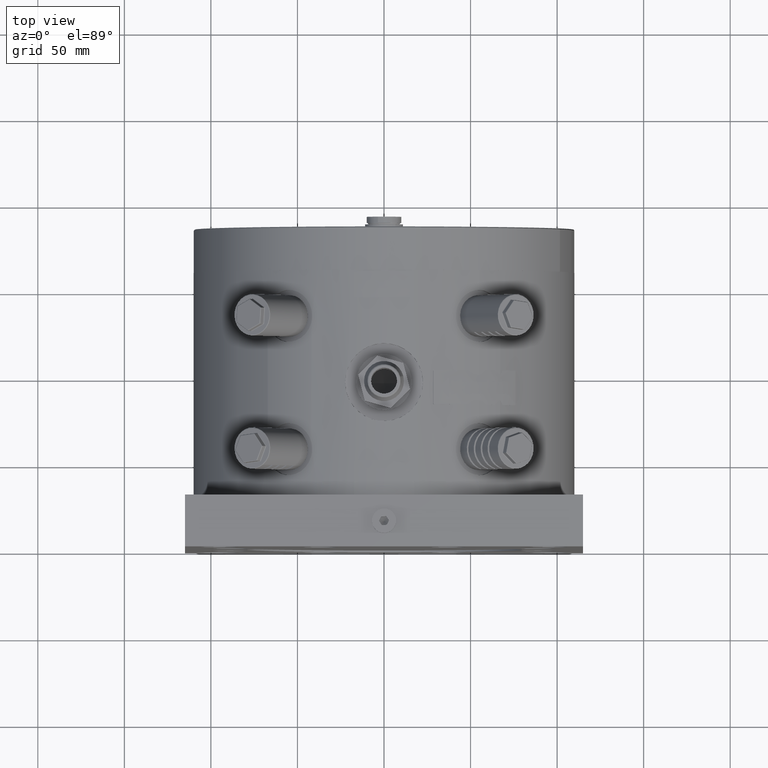
[diagram: clean part render]
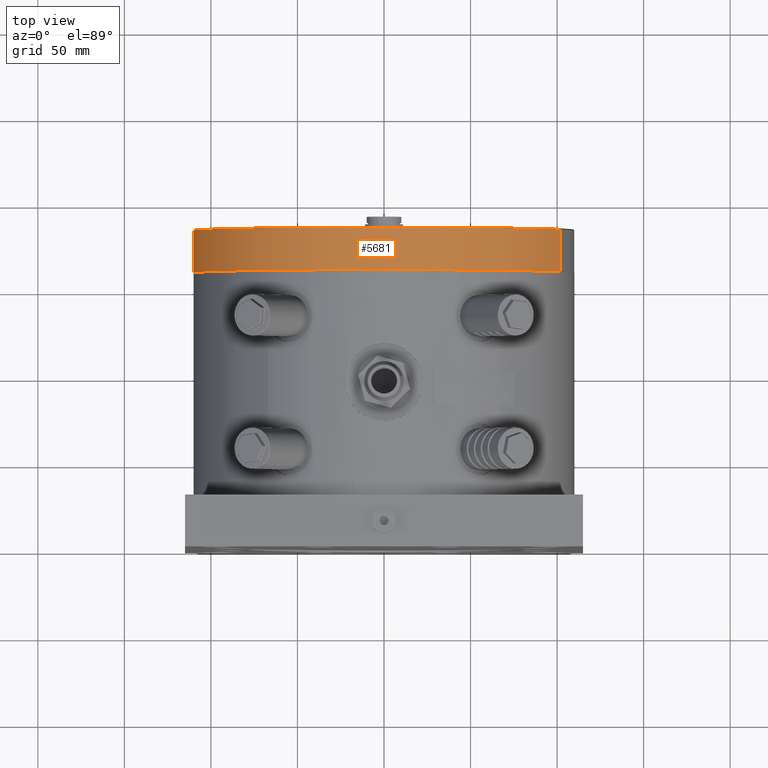
[diagram: same view with one face highlighted and labeled with its STEP entity id]
A machine part, top view. The second image highlights one B-rep face of the part: STEP entity #5681.
In plain terms, the highlighted cylindrical surface (partial cylindrical patch) has radius 110 mm, axis along (-0, -1, -0).
Its self-contained STEP definition (entity closure, byte-faithful):
#556 = AXIS2_PLACEMENT_3D ( 'NONE', #59534, #13200, #2173 ) ;
#818 = DIRECTION ( 'NONE',  ( 0.9238795325112811900, 0.0000000000000000000, 0.3826834323651031000 ) ) ;
#2173 = DIRECTION ( 'NONE',  ( -0.9238795325112811900, 0.0000000000000000000, -0.3826834323651031000 ) ) ;
#5215 = CARTESIAN_POINT ( 'NONE',  ( 101.6267485762409300, 160.0000000000000000, 42.09517756016102700 ) ) ;
#5681 = ADVANCED_FACE ( 'NONE', ( #62321 ), #5812, .T. ) ;
#5812 = CYLINDRICAL_SURFACE ( 'NONE', #42835, 109.9999999999999700 ) ;
#11458 = ORIENTED_EDGE ( 'NONE', *, *, #68927, .T. ) ;
#12115 = VERTEX_POINT ( 'NONE', #5215 ) ;
#13200 = DIRECTION ( 'NONE',  ( -8.673617352622729800E-018, -1.000000000000000000, -3.524176929506979800E-026 ) ) ;
#16798 = CIRCLE ( 'NONE', #556, 109.9999999999999700 ) ;
#17991 = DIRECTION ( 'NONE',  ( -0.9238795325112811900, 0.0000000000000000000, -0.3826834323651031000 ) ) ;
#18579 = CARTESIAN_POINT ( 'NONE',  ( 5.754808177238770300E-015, 185.0000000000000000, -3.095821873212600000E-013 ) ) ;
#19908 = LINE ( 'NONE', #63490, #26179 ) ;
#22404 = DIRECTION ( 'NONE',  ( -8.673617352622729800E-018, -1.000000000000000000, -3.524176929506979800E-026 ) ) ;
#23221 = ORIENTED_EDGE ( 'NONE', *, *, #40783, .F. ) ;
#26179 = VECTOR ( 'NONE', #69684, 1000.000000000000000 ) ;
#27446 = ORIENTED_EDGE ( 'NONE', *, *, #31032, .T. ) ;
#28470 = CARTESIAN_POINT ( 'NONE',  ( -101.6267485762409400, 160.0000000000000000, -42.09517756016165200 ) ) ;
#28766 = DIRECTION ( 'NONE',  ( 8.673617352622729800E-018, 1.000000000000000000, 3.524176929506979800E-026 ) ) ;
#29777 = VECTOR ( 'NONE', #22404, 1000.000000000000000 ) ;
#31032 = EDGE_CURVE ( 'NONE', #40580, #12115, #63439, .T. ) ;
#31375 = AXIS2_PLACEMENT_3D ( 'NONE', #34312, #28766, #17991 ) ;
#33385 = LINE ( 'NONE', #50732, #29777 ) ;
#34167 = VERTEX_POINT ( 'NONE', #50221 ) ;
#34312 = CARTESIAN_POINT ( 'NONE',  ( 5.537967743423209800E-015, 160.0000000000000000, -3.095821873221410000E-013 ) ) ;
#40580 = VERTEX_POINT ( 'NONE', #28470 ) ;
#40783 = EDGE_CURVE ( 'NONE', #64537, #12115, #19908, .T. ) ;
#42835 = AXIS2_PLACEMENT_3D ( 'NONE', #18579, #58213, #818 ) ;
#50221 = CARTESIAN_POINT ( 'NONE',  ( -101.6267485762409400, 184.5000000000000000, -42.09517756016165200 ) ) ;
#50732 = CARTESIAN_POINT ( 'NONE',  ( -101.6267485762409000, 185.0000000000000000, -42.09517756016163000 ) ) ;
#51682 = EDGE_CURVE ( 'NONE', #64537, #34167, #16798, .T. ) ;
#53656 = CARTESIAN_POINT ( 'NONE',  ( 101.6267485762409300, 184.5000000000000000, 42.09517756016102700 ) ) ;
#55791 = EDGE_LOOP ( 'NONE', ( #59367, #11458, #27446, #23221 ) ) ;
#58213 = DIRECTION ( 'NONE',  ( -8.673617352622729800E-018, -1.000000000000000000, -3.524176929506979800E-026 ) ) ;
#59367 = ORIENTED_EDGE ( 'NONE', *, *, #51682, .T. ) ;
#59534 = CARTESIAN_POINT ( 'NONE',  ( 5.750471368562459800E-015, 184.5000000000000000, -3.095821873212774700E-013 ) ) ;
#62321 = FACE_OUTER_BOUND ( 'NONE', #55791, .T. ) ;
#63439 = CIRCLE ( 'NONE', #31375, 109.9999999999999700 ) ;
#63490 = CARTESIAN_POINT ( 'NONE',  ( 101.6267485762409000, 185.0000000000000000, 42.09517756016101900 ) ) ;
#64537 = VERTEX_POINT ( 'NONE', #53656 ) ;
#68927 = EDGE_CURVE ( 'NONE', #34167, #40580, #33385, .T. ) ;
#69684 = DIRECTION ( 'NONE',  ( -8.673617352622729800E-018, -1.000000000000000000, -3.524176929506979800E-026 ) ) ;